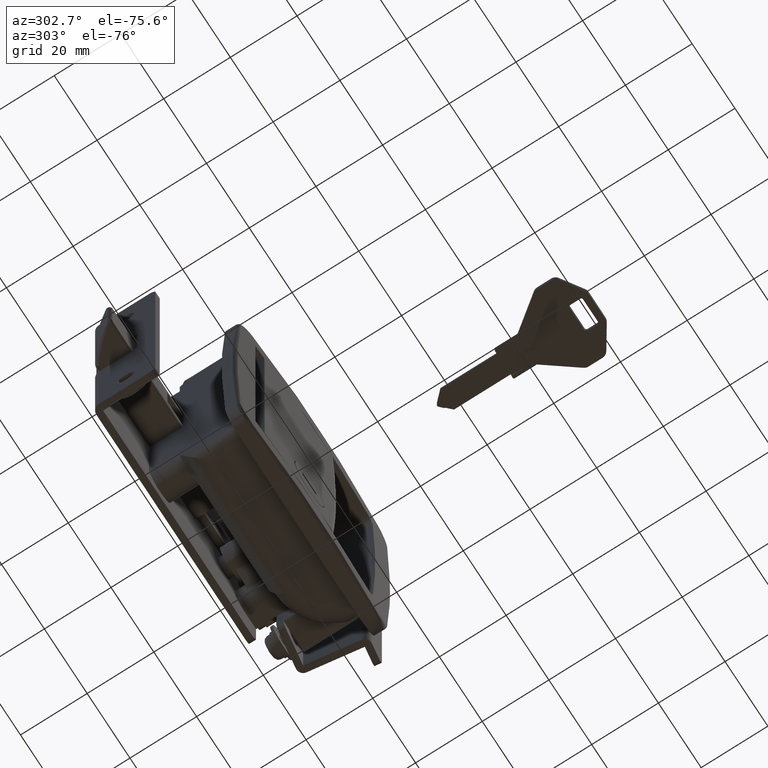
[diagram: clean part render]
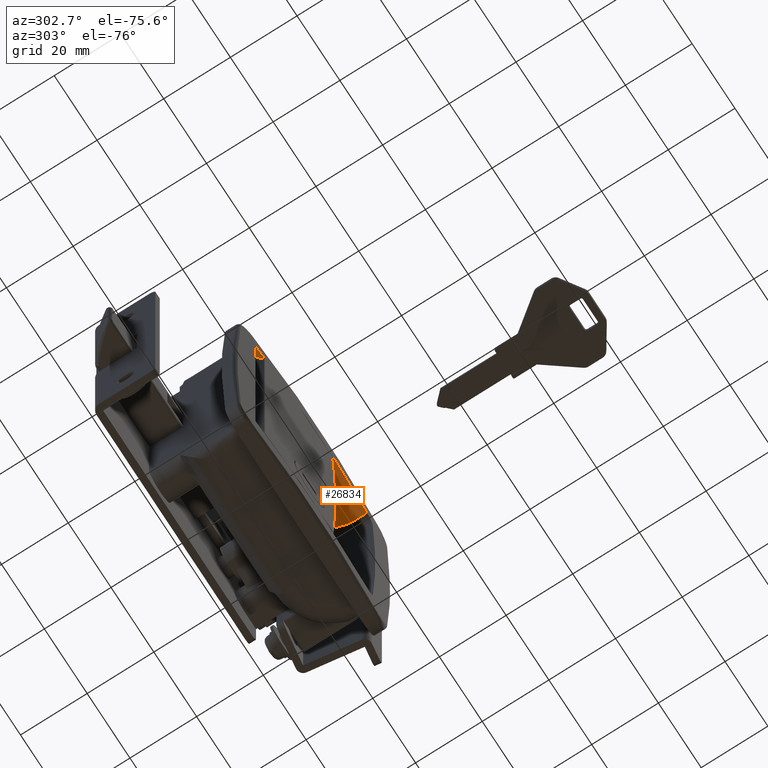
[diagram: same view with one face highlighted and labeled with its STEP entity id]
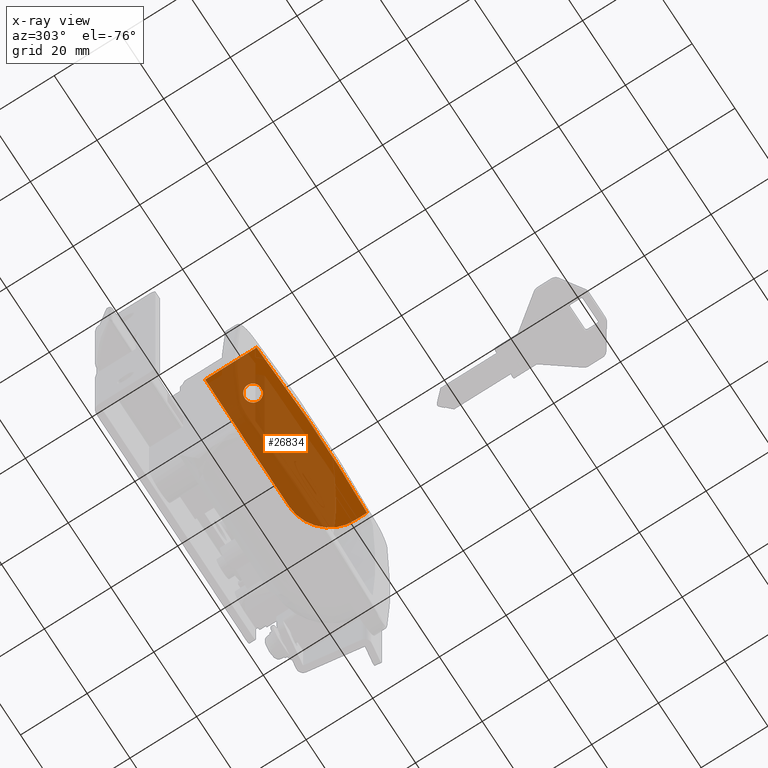
[diagram: x-ray of the same camera — body ghosted, the highlighted face saturated]
A machine part, auxiliary view. The second image highlights one B-rep face of the part: STEP entity #26834.
The next image is the same camera in x-ray: the body ghosted, the highlighted face saturated — about 77% of this face is hidden behind the body in this view.
In plain terms, the highlighted face is a freeform B-spline surface patch.
Its self-contained STEP definition (entity closure, byte-faithful):
#21737=CARTESIAN_POINT('',(33.000000000181139,-25.500000000048200,38.000000000032053));
#21738=VERTEX_POINT('',#21737);
#21739=CARTESIAN_POINT('',(35.189679994704697,-27.980665534577408,38.000000000033751));
#21740=VERTEX_POINT('',#21739);
#21741=CARTESIAN_POINT('',(33.000000000181139,-25.500000000048200,38.000000000032053));
#21742=CARTESIAN_POINT('',(33.000000000181146,-27.706746499927355,38.000000000032053));
#21743=CARTESIAN_POINT('',(35.189679994704697,-27.980665534577412,38.000000000033751));
#21751=(BOUNDED_CURVE()B_SPLINE_CURVE(2,(#21741,#21742,#21743),.UNSPECIFIED.,.F.,.U.)B_SPLINE_CURVE_WITH_KNOTS((3,3),(0.0,0.228526070991654),.UNSPECIFIED.)CURVE()GEOMETRIC_REPRESENTATION_ITEM()RATIONAL_B_SPLINE_CURVE((1.0,0.732265053937851,0.954005430201665))REPRESENTATION_ITEM(''));
#21752=EDGE_CURVE('',#21738,#21740,#21751,.T.);
#21754=CARTESIAN_POINT('',(35.521816339425570,-23.000095192392120,38.000000000034021));
#21755=VERTEX_POINT('',#21754);
#21756=CARTESIAN_POINT('',(35.521816339425570,-23.000095192392124,38.000000000034014));
#21757=CARTESIAN_POINT('',(35.510908377731418,-23.000000000048200,38.000000000034014));
#21758=CARTESIAN_POINT('',(35.500000000181153,-23.000000000048200,38.000000000033999));
#21759=CARTESIAN_POINT('',(33.000000000181132,-23.000000000048207,38.000000000032045));
#21760=CARTESIAN_POINT('',(33.000000000181139,-25.500000000048200,38.000000000032053));
#21768=(BOUNDED_CURVE()B_SPLINE_CURVE(2,(#21756,#21757,#21758,#21759,#21760),.UNSPECIFIED.,.F.,.U.)B_SPLINE_CURVE_WITH_KNOTS((3,2,3),(0.748460105594766,0.750000000000000,1.0),.UNSPECIFIED.)CURVE()GEOMETRIC_REPRESENTATION_ITEM()RATIONAL_B_SPLINE_CURVE((0.996414027937834,0.998195901484072,1.0,0.707106781186548,1.0))REPRESENTATION_ITEM(''));
#21769=EDGE_CURVE('',#21755,#21738,#21768,.T.);
#21840=CARTESIAN_POINT('',(38.000000000181153,-25.500000000048200,38.000000000035953));
#21841=VERTEX_POINT('',#21840);
#21842=CARTESIAN_POINT('',(35.189679994704697,-27.980665534577412,38.000000000033751));
#21843=CARTESIAN_POINT('',(35.344237681067305,-28.000000000048200,38.000000000033879));
#21844=CARTESIAN_POINT('',(35.500000000181153,-28.000000000048200,38.000000000033999));
#21845=CARTESIAN_POINT('',(38.000000000181146,-28.000000000048207,38.000000000035953));
#21846=CARTESIAN_POINT('',(38.000000000181153,-25.500000000048200,38.000000000035953));
#21854=(BOUNDED_CURVE()B_SPLINE_CURVE(2,(#21842,#21843,#21844,#21845,#21846),.UNSPECIFIED.,.F.,.U.)B_SPLINE_CURVE_WITH_KNOTS((3,2,3),(0.228526070991654,0.250000000000000,0.500000000000000),.UNSPECIFIED.)CURVE()GEOMETRIC_REPRESENTATION_ITEM()RATIONAL_B_SPLINE_CURVE((0.954005430201665,0.974841727248696,1.0,0.707106781186548,1.0))REPRESENTATION_ITEM(''));
#21855=EDGE_CURVE('',#21740,#21841,#21854,.T.);
#21889=CARTESIAN_POINT('',(38.000000000181153,-25.500000000048200,38.000000000035953));
#21890=CARTESIAN_POINT('',(38.000000000181153,-23.021721974549152,38.000000000035946));
#21891=CARTESIAN_POINT('',(35.521816339425570,-23.000095192392124,38.000000000034014));
#21899=(BOUNDED_CURVE()B_SPLINE_CURVE(2,(#21889,#21890,#21891),.UNSPECIFIED.,.F.,.U.)B_SPLINE_CURVE_WITH_KNOTS((3,3),(0.500000000000000,0.748460105594766),.UNSPECIFIED.)CURVE()GEOMETRIC_REPRESENTATION_ITEM()RATIONAL_B_SPLINE_CURVE((1.0,0.708910879702475,0.996414027937834))REPRESENTATION_ITEM(''));
#21900=EDGE_CURVE('',#21841,#21755,#21899,.T.);
#25751=CARTESIAN_POINT('',(26.000000000143949,-17.200000000005851,38.000000000026553));
#25752=VERTEX_POINT('',#25751);
#25887=CARTESIAN_POINT('',(26.000000000143949,-32.649148803539262,38.000000000026603));
#25888=VERTEX_POINT('',#25887);
#25918=CARTESIAN_POINT('',(26.000000000143949,-32.649148803539262,38.000000000026603));
#25919=CARTESIAN_POINT('',(26.000000000143949,-17.200000000005851,38.000000000026553));
#25920=QUASI_UNIFORM_CURVE('',1,(#25918,#25919),.UNSPECIFIED.,.F.,.U.);
#25921=EDGE_CURVE('',#25888,#25752,#25920,.T.);
#25940=CARTESIAN_POINT('',(65.235464898057899,-17.200000000005900,38.000000000057248));
#25941=VERTEX_POINT('',#25940);
#25942=CARTESIAN_POINT('',(26.000000000143949,-17.200000000005851,38.000000000026553));
#25943=CARTESIAN_POINT('',(65.235464898057899,-17.200000000005900,38.000000000057248));
#25944=QUASI_UNIFORM_CURVE('',1,(#25942,#25943),.UNSPECIFIED.,.F.,.U.);
#25945=EDGE_CURVE('',#25752,#25941,#25944,.T.);
#26131=CARTESIAN_POINT('',(77.266073869665902,-29.200000000005900,38.000000000066649));
#26132=VERTEX_POINT('',#26131);
#26146=CARTESIAN_POINT('',(65.235464898057899,-17.200000000005900,38.000000000057248));
#26147=CARTESIAN_POINT('',(65.632129079665830,-17.200000000005900,38.000000000057568));
#26148=CARTESIAN_POINT('',(66.025471719270641,-17.219514873745968,38.000000000057867));
#26149=CARTESIAN_POINT('',(66.805743979169989,-17.296222682202909,38.000000000058492));
#26150=CARTESIAN_POINT('',(67.192672951772906,-17.353419422267159,38.000000000058797));
#26151=CARTESIAN_POINT('',(67.960155941177248,-17.505267330924870,38.000000000059380));
#26152=CARTESIAN_POINT('',(68.340710209292482,-17.599917022988201,38.000000000059693));
#26153=CARTESIAN_POINT('',(68.812328056974096,-17.742170688632161,38.000000000060062));
#26154=CARTESIAN_POINT('',(68.906447408366617,-17.771821253432069,38.000000000060140));
#26155=CARTESIAN_POINT('',(69.094273467513617,-17.833546765588959,38.000000000060290));
#26156=CARTESIAN_POINT('',(69.188089979113371,-17.865661249413410,38.000000000060353));
#26157=CARTESIAN_POINT('',(69.468113063386866,-17.965398195507010,38.000000000060567));
#26158=CARTESIAN_POINT('',(69.652394960336864,-18.036220174135380,38.000000000060723));
#26159=CARTESIAN_POINT('',(70.198185727119679,-18.261415526820912,38.000000000061149));
#26160=CARTESIAN_POINT('',(70.907127388952247,-18.595560175741092,38.000000000061704));
#26161=CARTESIAN_POINT('',(71.579206422923946,-18.996217199554099,38.000000000062222));
#26162=CARTESIAN_POINT('',(72.069303863236243,-19.321901736657459,38.000000000062620));
#26163=CARTESIAN_POINT('',(72.230338601341401,-19.434669280049079,38.000000000062727));
#26164=CARTESIAN_POINT('',(72.468338216093883,-19.610230466607319,38.000000000062919));
#26165=CARTESIAN_POINT('',(72.547079061324979,-19.669819674954770,38.000000000062983));
#26166=CARTESIAN_POINT('',(72.703363250289527,-19.791158780487219,38.000000000063110));
#26167=CARTESIAN_POINT('',(72.781009548326736,-19.852994883922779,38.000000000063160));
#26168=CARTESIAN_POINT('',(73.164407416759772,-20.166152912133612,38.000000000063473));
#26169=CARTESIAN_POINT('',(73.456352993020602,-20.429812338065592,38.000000000063693));
#26170=CARTESIAN_POINT('',(74.011625114373260,-20.982573618346940,38.000000000064119));
#26171=CARTESIAN_POINT('',(74.274949246678460,-21.271677617672779,38.000000000064333));
#26172=CARTESIAN_POINT('',(74.773054227725126,-21.875260704830300,38.000000000064709));
#26173=CARTESIAN_POINT('',(75.007836680885120,-22.189738366327759,38.000000000064901));
#26174=CARTESIAN_POINT('',(75.283006331944037,-22.599111694665609,38.000000000065128));
#26175=CARTESIAN_POINT('',(75.337122706935446,-22.681802070441471,38.000000000065157));
#26176=CARTESIAN_POINT('',(75.443499740145768,-22.848832561317611,38.000000000065242));
#26177=CARTESIAN_POINT('',(75.495778133759188,-22.933209703436919,38.000000000065292));
#26178=CARTESIAN_POINT('',(75.648951171546599,-23.187405482716940,38.000000000065413));
#26179=CARTESIAN_POINT('',(75.746484458871393,-23.358744822394140,38.000000000065491));
#26180=CARTESIAN_POINT('',(76.025595599862584,-23.878283907635488,38.000000000065697));
#26181=CARTESIAN_POINT('',(76.361837887193303,-24.585699326363581,38.000000000065967));
#26182=CARTESIAN_POINT('',(76.627391754245281,-25.322048210993490,38.000000000066173));
#26183=CARTESIAN_POINT('',(76.799701879485028,-25.885302002764380,38.000000000066301));
#26184=CARTESIAN_POINT('',(76.852654777221204,-26.074888534512990,38.000000000066358));
#26185=CARTESIAN_POINT('',(76.949434900152923,-26.457796825565779,38.000000000066422));
#26186=CARTESIAN_POINT('',(76.993332975511578,-26.651535885732251,38.000000000066443));
#26187=CARTESIAN_POINT('',(77.110110665355606,-27.233713105961328,38.000000000066542));
#26188=CARTESIAN_POINT('',(77.226732534960547,-28.014254021507469,38.000000000066663));
#26189=CARTESIAN_POINT('',(77.266073869665803,-28.803306934742739,38.000000000066649));
#26190=CARTESIAN_POINT('',(77.266073869665803,-29.200000000005900,38.000000000066649));
#26191=B_SPLINE_CURVE_WITH_KNOTS('',3,(#26146,#26147,#26148,#26149,#26150,#26151,#26152,#26153,#26154,#26155,#26156,#26157,#26158,#26159,#26160,#26161,#26162,#26163,#26164,#26165,#26166,#26167,#26168,#26169,#26170,#26171,#26172,#26173,#26174,#26175,#26176,#26177,#26178,#26179,#26180,#26181,#26182,#26183,#26184,#26185,#26186,#26187,#26188,#26189,#26190),.UNSPECIFIED.,.F.,.U.,(4,2,2,2,2,2,2,1,2,2,2,2,2,2,2,2,2,2,1,2,2,2,1,4),(0.0,0.062499999999997,0.124999999999994,0.187499999999991,0.203124999999991,0.218749999999991,0.249999999999991,0.312499999999988,0.374999999999985,0.406249999999985,0.421874999999986,0.437499999999986,0.499999999999990,0.562499999999993,0.624999999999996,0.640624999999996,0.656249999999996,0.687499999999998,0.749999999999999,0.812500000000000,0.843750000000000,0.875000000000000,0.937500000000000,1.0),.UNSPECIFIED.);
#26192=EDGE_CURVE('',#25941,#26132,#26191,.T.);
#26260=CARTESIAN_POINT('',(77.266073869665902,-32.864672264738651,38.000000000066699));
#26261=VERTEX_POINT('',#26260);
#26297=CARTESIAN_POINT('',(77.266073869665902,-29.200000000005900,38.000000000066649));
#26298=CARTESIAN_POINT('',(77.266073869665902,-32.864672264738651,38.000000000066699));
#26299=QUASI_UNIFORM_CURVE('',1,(#26297,#26298),.UNSPECIFIED.,.F.,.U.);
#26300=EDGE_CURVE('',#26132,#26261,#26299,.T.);
#26804=CARTESIAN_POINT('',(79.826815603832614,-34.314152916880651,38.000000000068667));
#26805=CARTESIAN_POINT('',(23.439258265977259,-34.314152916880651,38.000000000024563));
#26806=CARTESIAN_POINT('',(79.826815603832614,-16.385817340512499,38.000000000068667));
#26807=CARTESIAN_POINT('',(23.439258265977259,-16.385817340512499,38.000000000024563));
#26808=B_SPLINE_SURFACE_WITH_KNOTS('',1,1,((#26804,#26806),(#26805,#26807)),.UNSPECIFIED.,.F.,.F.,.U.,(2,2),(2,2),(0.0,56.387557337855363),(0.0,17.928335576368159),.UNSPECIFIED.);
#26809=CARTESIAN_POINT('',(26.000000000143949,-32.649148803539262,38.000000000026603));
#26810=CARTESIAN_POINT('',(51.626816891887266,-34.236457972012580,38.000000000046640));
#26811=CARTESIAN_POINT('',(77.266073869665902,-32.864672264738651,38.000000000066699));
#26819=(BOUNDED_CURVE()B_SPLINE_CURVE(2,(#26809,#26810,#26811),.UNSPECIFIED.,.F.,.U.)CURVE()GEOMETRIC_REPRESENTATION_ITEM()QUASI_UNIFORM_CURVE()RATIONAL_B_SPLINE_CURVE((1.0,0.998338332460028,1.0))REPRESENTATION_ITEM(''));
#26820=EDGE_CURVE('',#25888,#26261,#26819,.T.);
#26821=ORIENTED_EDGE('',*,*,#26820,.F.);
#26822=ORIENTED_EDGE('',*,*,#25921,.T.);
#26823=ORIENTED_EDGE('',*,*,#25945,.T.);
#26824=ORIENTED_EDGE('',*,*,#26192,.T.);
#26825=ORIENTED_EDGE('',*,*,#26300,.T.);
#26826=EDGE_LOOP('',(#26821,#26822,#26823,#26824,#26825));
#26827=FACE_OUTER_BOUND('',#26826,.T.);
#26828=ORIENTED_EDGE('',*,*,#21900,.T.);
#26829=ORIENTED_EDGE('',*,*,#21769,.T.);
#26830=ORIENTED_EDGE('',*,*,#21752,.T.);
#26831=ORIENTED_EDGE('',*,*,#21855,.T.);
#26832=EDGE_LOOP('',(#26828,#26829,#26830,#26831));
#26833=FACE_BOUND('',#26832,.T.);
#26834=ADVANCED_FACE('',(#26827,#26833),#26808,.T.);